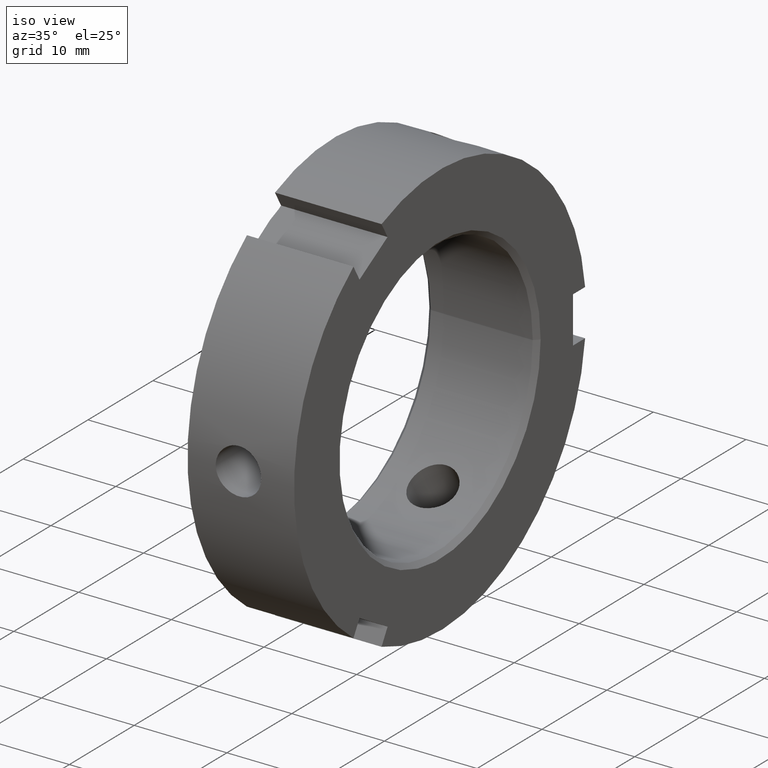
[diagram: clean part render]
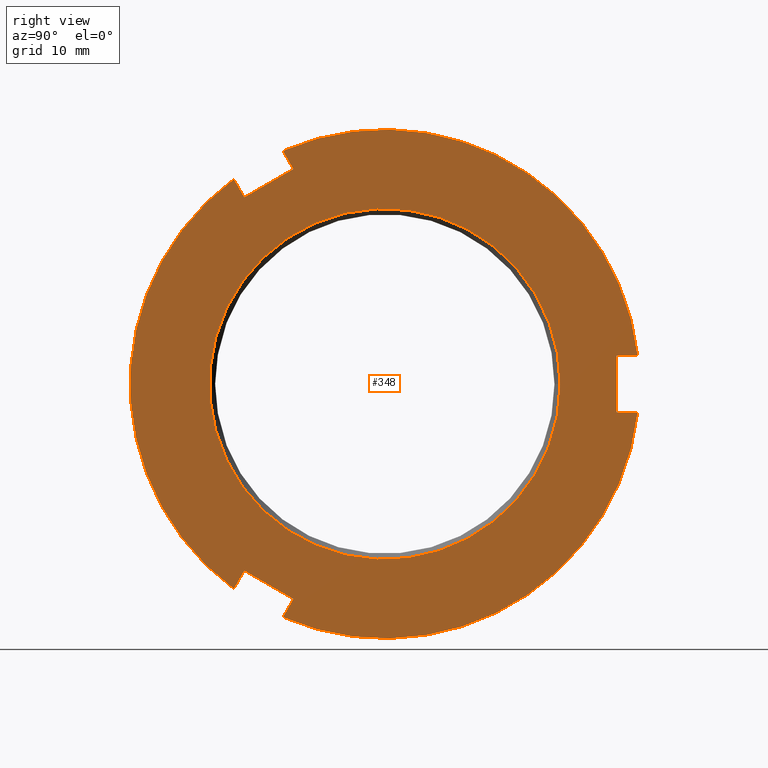
[diagram: tour spotlight — one face highlighted and labeled with its STEP entity id]
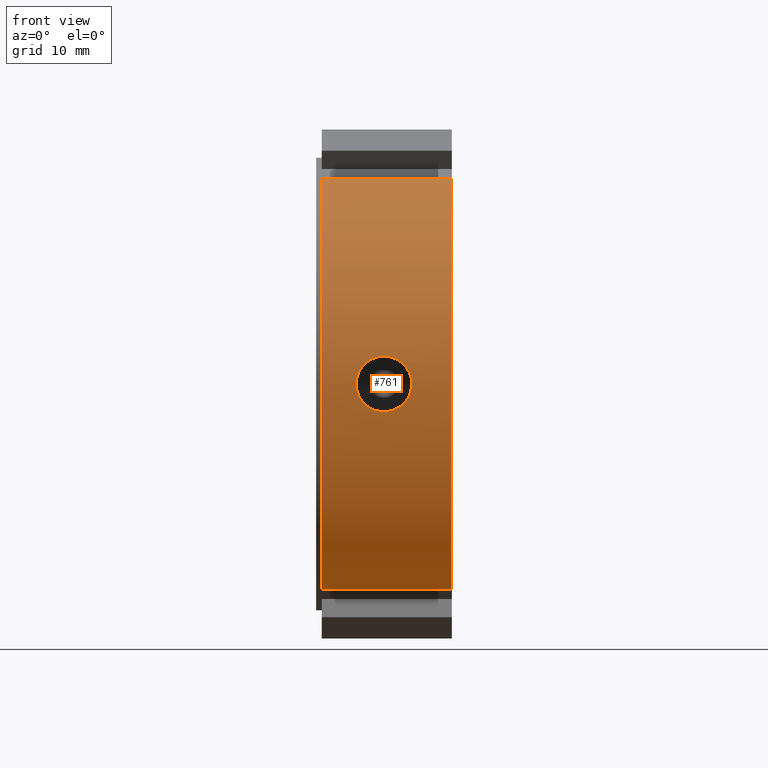
[diagram: tour spotlight — one face highlighted and labeled with its STEP entity id]
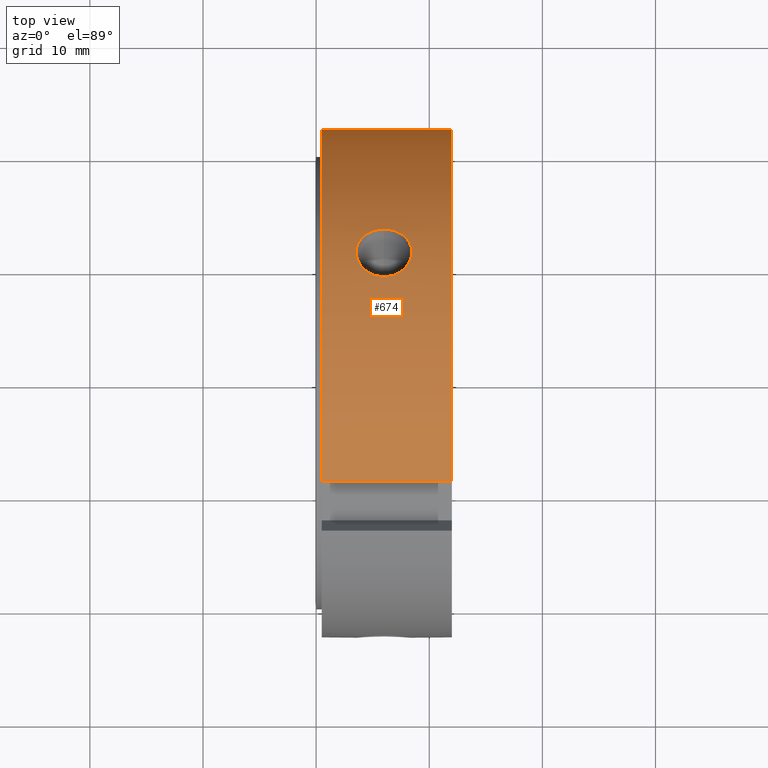
[diagram: tour spotlight — one face highlighted and labeled with its STEP entity id]
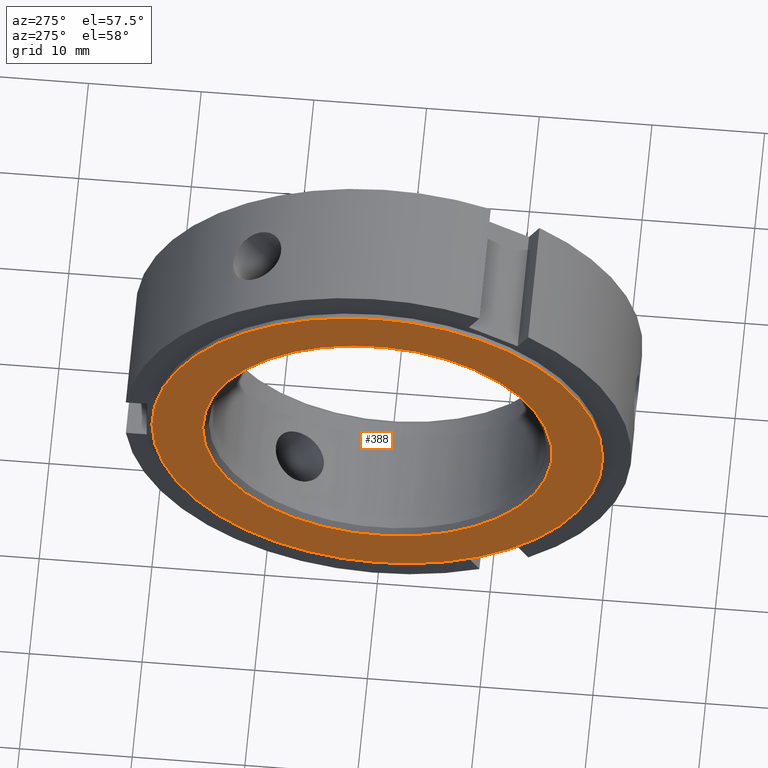
[diagram: tour spotlight — one face highlighted and labeled with its STEP entity id]
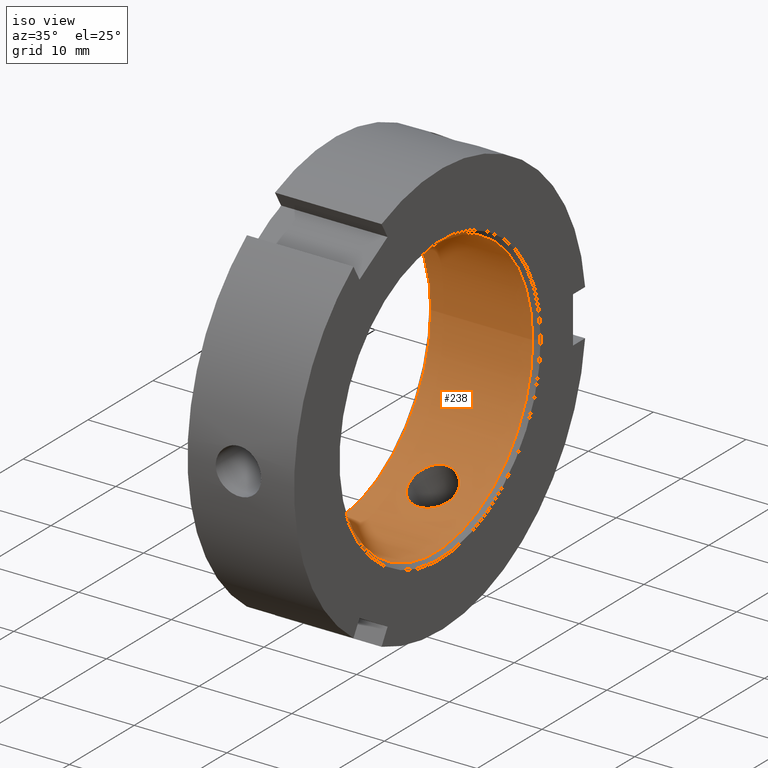
[diagram: tour spotlight — one face highlighted and labeled with its STEP entity id]
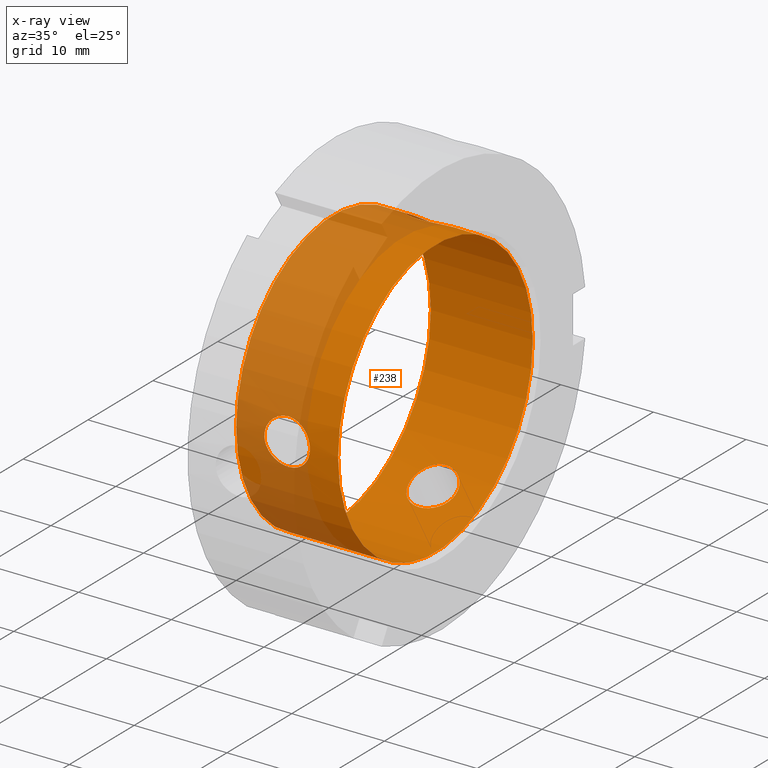
[diagram: x-ray of the same camera — body ghosted, this tour face saturated]
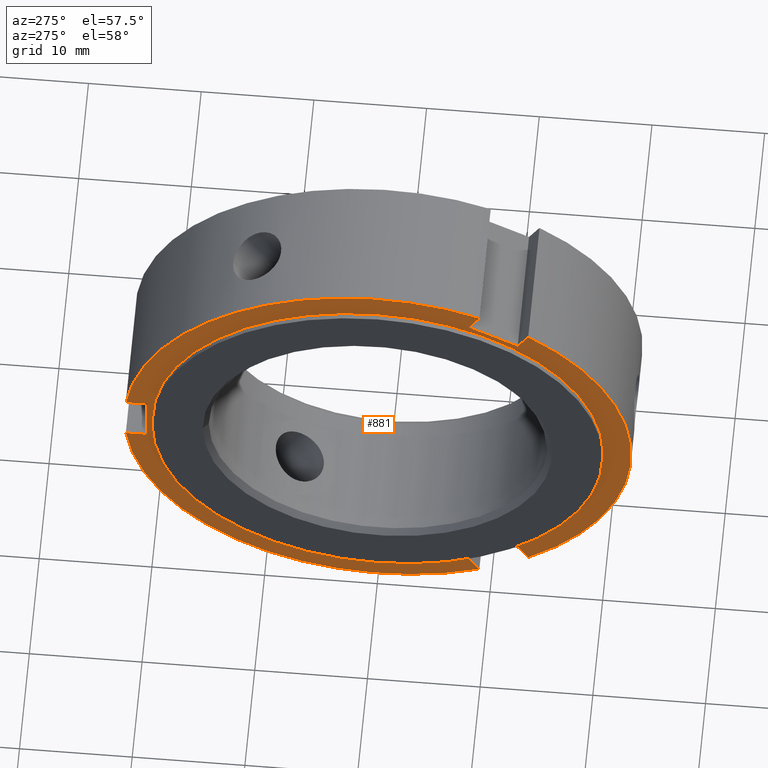
[diagram: tour spotlight — one face highlighted and labeled with its STEP entity id]
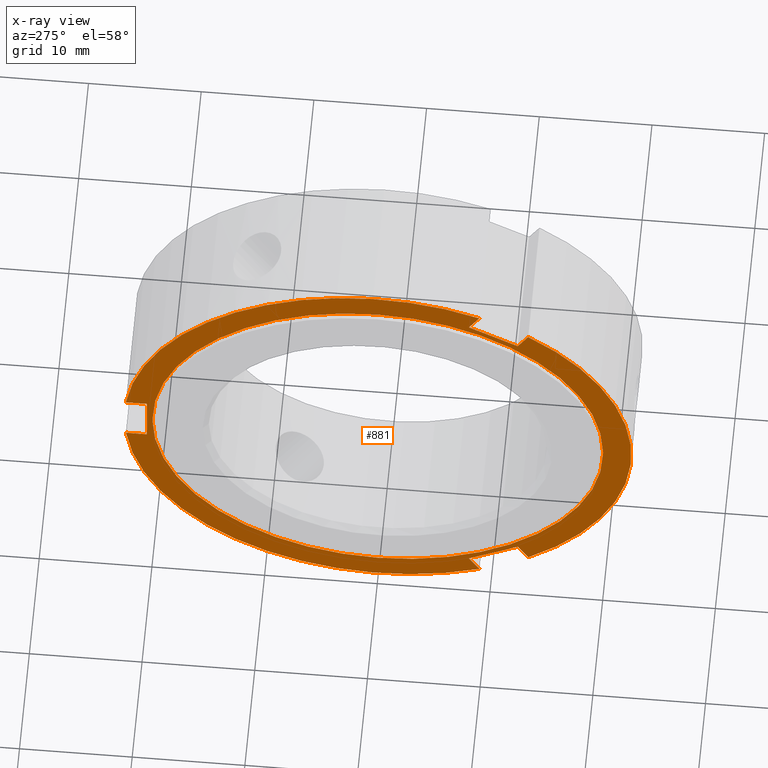
[diagram: x-ray of the same camera — body ghosted, this tour face saturated]
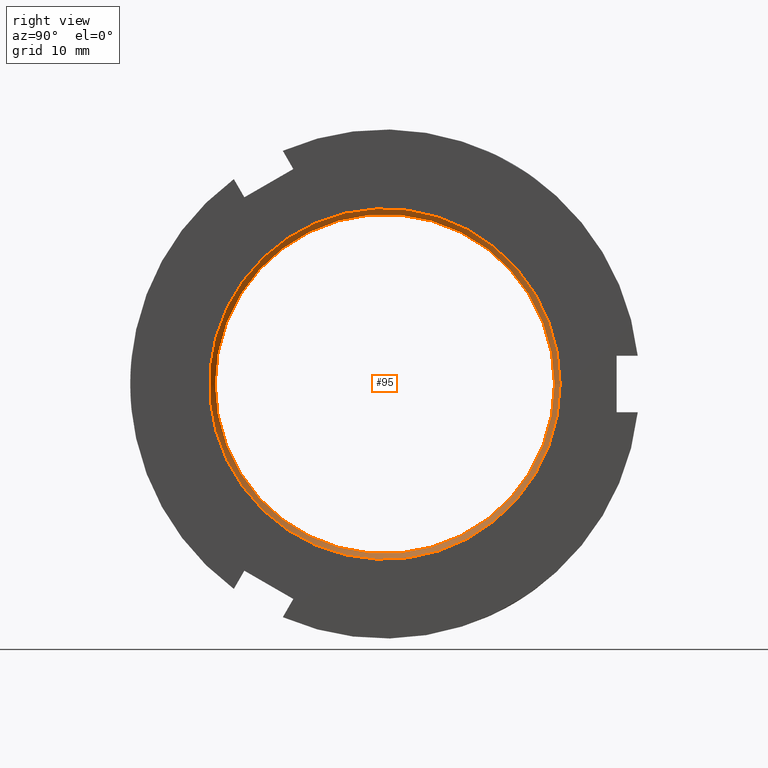
[diagram: tour spotlight — one face highlighted and labeled with its STEP entity id]
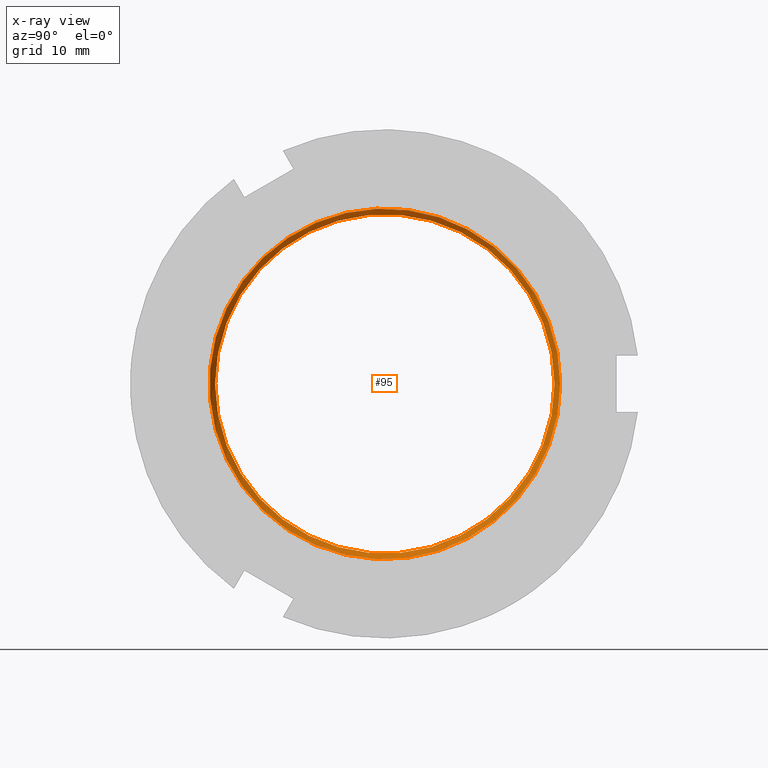
[diagram: x-ray of the same camera — body ghosted, this tour face saturated]
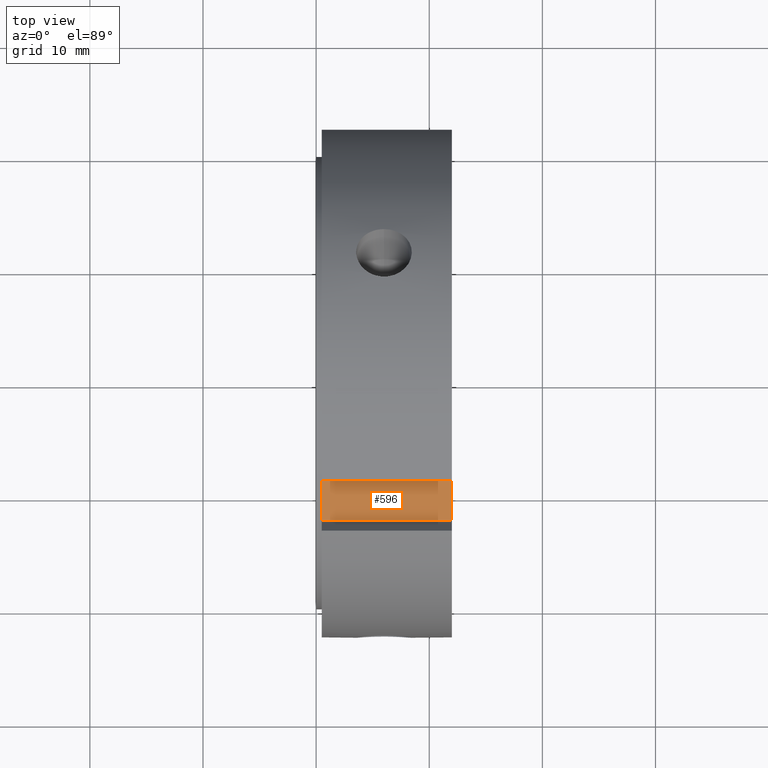
[diagram: tour spotlight — one face highlighted and labeled with its STEP entity id]
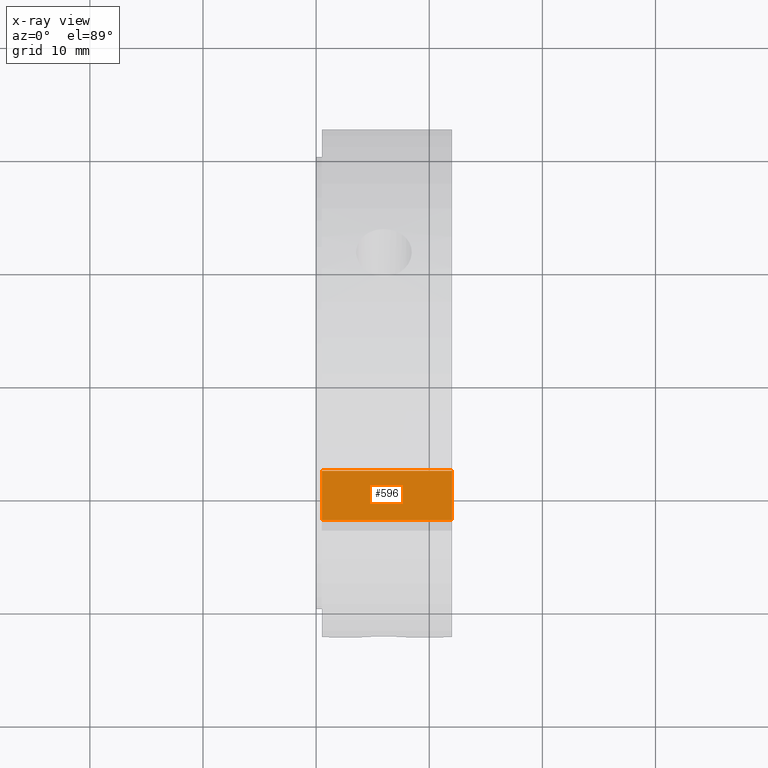
[diagram: x-ray of the same camera — body ghosted, this tour face saturated]
A machine part: a face-by-face anatomy tour. The part has 22 B-rep faces; the first image is the clean iso view, then the 8 largest visible faces are spotlighted one at a time (largest first), each with its STEP entity span.

Face 1 — right view, entity #348. In plain terms, the highlighted planar face has unit normal (1, 0, 0).
Definition (entity closure, byte-faithful):
#73=CARTESIAN_POINT('',(11.999999999999996,15.500000000000000,1.898203E-015));
#74=VERTEX_POINT('',#73);
#75=CARTESIAN_POINT('',(11.999999999999996,0.0,0.0));
#76=DIRECTION('',(1.0,0.0,0.0));
#77=DIRECTION('',(0.0,-1.0,0.0));
#78=AXIS2_PLACEMENT_3D('',#75,#76,#77);
#79=CIRCLE('',#78,15.500000000000000);
#80=EDGE_CURVE('',#74,#74,#79,.T.);
#239=CARTESIAN_POINT('',(11.999999999999996,18.750000000000000,0.0));
#240=DIRECTION('',(1.0,0.0,0.0));
#241=DIRECTION('',(0.0,0.0,-1.0));
#242=AXIS2_PLACEMENT_3D('',#239,#240,#241);
#243=PLANE('',#242);
#244=CARTESIAN_POINT('',(11.999999999999996,-13.345403396960053,-18.114916731037077));
#245=VERTEX_POINT('',#244);
#246=CARTESIAN_POINT('',(11.999999999999996,-12.415063509461104,-16.503520777580988));
#247=VERTEX_POINT('',#246);
#248=CARTESIAN_POINT('',(11.999999999999996,-13.345403396960059,-18.114916731037077));
#249=DIRECTION('',(0.0,0.500000000000001,0.866025403784438));
#250=VECTOR('',#249,1.860679774997895);
#251=LINE('',#248,#250);
#252=EDGE_CURVE('',#245,#247,#251,.T.);
#253=ORIENTED_EDGE('',*,*,#252,.T.);
#254=CARTESIAN_POINT('',(11.999999999999996,-8.084936490538913,-19.003520777580988));
#255=VERTEX_POINT('',#254);
#256=CARTESIAN_POINT('',(11.999999999999996,-12.415063509461110,-16.503520777580988));
#257=DIRECTION('',(0.0,0.866025403784438,-0.500000000000000));
#258=VECTOR('',#257,4.999999999999998);
#259=LINE('',#256,#258);
#260=EDGE_CURVE('',#247,#255,#259,.T.);
#261=ORIENTED_EDGE('',*,*,#260,.T.);
#262=CARTESIAN_POINT('',(11.999999999999996,-9.015276378037862,-20.614916731037077));
#263=VERTEX_POINT('',#262);
#264=CARTESIAN_POINT('',(11.999999999999996,-8.084936490538915,-19.003520777580988));
#265=DIRECTION('',(0.0,-0.500000000000000,-0.866025403784439));
#266=VECTOR('',#265,1.860679774997898);
#267=LINE('',#264,#266);
#268=EDGE_CURVE('',#255,#263,#267,.T.);
#269=ORIENTED_EDGE('',*,*,#268,.T.);
#270=CARTESIAN_POINT('',(11.999999999999996,22.360679774997894,-2.499999999999999));
#271=VERTEX_POINT('',#270);
#272=CARTESIAN_POINT('',(11.999999999999995,0.0,0.0));
#273=DIRECTION('',(1.0,0.0,0.0));
#274=DIRECTION('',(0.0,1.0,0.0));
#275=AXIS2_PLACEMENT_3D('',#272,#273,#274);
#276=CIRCLE('',#275,22.500000000000000);
#277=EDGE_CURVE('',#263,#271,#276,.T.);
#278=ORIENTED_EDGE('',*,*,#277,.T.);
#279=CARTESIAN_POINT('',(11.999999999999996,20.500000000000000,-2.499999999999999));
#280=VERTEX_POINT('',#279);
#281=CARTESIAN_POINT('',(11.999999999999996,22.360679774997894,-2.499999999999999));
#282=DIRECTION('',(0.0,-1.0,0.0));
#283=VECTOR('',#282,1.860679774997895);
#284=LINE('',#281,#283);
#285=EDGE_CURVE('',#271,#280,#284,.T.);
#286=ORIENTED_EDGE('',*,*,#285,.T.);
#287=CARTESIAN_POINT('',(11.999999999999996,20.500000000000000,2.499999999999999));
#288=VERTEX_POINT('',#287);
#289=CARTESIAN_POINT('',(11.999999999999996,20.500000000000000,-2.500000000000000));
#290=DIRECTION('',(0.0,0.0,1.0));
#291=VECTOR('',#290,4.999999999999998);
#292=LINE('',#289,#291);
#293=EDGE_CURVE('',#280,#288,#292,.T.);
#294=ORIENTED_EDGE('',*,*,#293,.T.);
#295=CARTESIAN_POINT('',(11.999999999999996,22.360679774997894,2.499999999999999));
#296=VERTEX_POINT('',#295);
#297=CARTESIAN_POINT('',(11.999999999999996,20.500000000000000,2.499999999999999));
#298=DIRECTION('',(0.0,1.0,0.0));
#299=VECTOR('',#298,1.860679774997895);
#300=LINE('',#297,#299);
#301=EDGE_CURVE('',#288,#296,#300,.T.);
#302=ORIENTED_EDGE('',*,*,#301,.T.);
#303=CARTESIAN_POINT('',(11.999999999999996,-9.015276378037846,20.614916731037084));
#304=VERTEX_POINT('',#303);
#305=CARTESIAN_POINT('',(11.999999999999995,0.0,0.0));
#306=DIRECTION('',(1.0,0.0,0.0));
#307=DIRECTION('',(0.0,1.0,0.0));
#308=AXIS2_PLACEMENT_3D('',#305,#306,#307);
#309=CIRCLE('',#308,22.500000000000000);
#310=EDGE_CURVE('',#296,#304,#309,.T.);
#311=ORIENTED_EDGE('',*,*,#310,.T.);
#312=CARTESIAN_POINT('',(11.999999999999996,-8.084936490538899,19.003520777580995));
#313=VERTEX_POINT('',#312);
#314=CARTESIAN_POINT('',(11.999999999999996,-9.015276378037848,20.614916731037088));
#315=DIRECTION('',(0.0,0.499999999999999,-0.866025403784439));
#316=VECTOR('',#315,1.860679774997897);
#317=LINE('',#314,#316);
#318=EDGE_CURVE('',#304,#313,#317,.T.);
#319=ORIENTED_EDGE('',*,*,#318,.T.);
#320=CARTESIAN_POINT('',(11.999999999999996,-12.415063509461090,16.503520777580995));
#321=VERTEX_POINT('',#320);
#322=CARTESIAN_POINT('',(11.999999999999996,-8.084936490538899,19.003520777580992));
#323=DIRECTION('',(0.0,-0.866025403784439,-0.499999999999999));
#324=VECTOR('',#323,4.999999999999999);
#325=LINE('',#322,#324);
#326=EDGE_CURVE('',#313,#321,#325,.T.);
#327=ORIENTED_EDGE('',*,*,#326,.T.);
#328=CARTESIAN_POINT('',(11.999999999999996,-13.345403396960037,18.114916731037084));
#329=VERTEX_POINT('',#328);
#330=CARTESIAN_POINT('',(11.999999999999996,-12.415063509461094,16.503520777580995));
#331=DIRECTION('',(0.0,-0.499999999999999,0.866025403784439));
#332=VECTOR('',#331,1.860679774997897);
#333=LINE('',#330,#332);
#334=EDGE_CURVE('',#321,#329,#333,.T.);
#335=ORIENTED_EDGE('',*,*,#334,.T.);
#336=CARTESIAN_POINT('',(11.999999999999995,0.0,0.0));
#337=DIRECTION('',(1.0,0.0,0.0));
#338=DIRECTION('',(0.0,1.0,0.0));
#339=AXIS2_PLACEMENT_3D('',#336,#337,#338);
#340=CIRCLE('',#339,22.500000000000000);
#341=EDGE_CURVE('',#329,#245,#340,.T.);
#342=ORIENTED_EDGE('',*,*,#341,.T.);
#343=EDGE_LOOP('',(#253,#261,#269,#278,#286,#294,#302,#311,#319,#327,#335,#342));
#344=FACE_OUTER_BOUND('',#343,.T.);
#345=ORIENTED_EDGE('',*,*,#80,.F.);
#346=EDGE_LOOP('',(#345));
#347=FACE_BOUND('',#346,.T.);
#348=ADVANCED_FACE('',(#344,#347),#243,.T.);

Face 2 — front view, entity #761. In plain terms, the highlighted cylindrical surface (partial cylindrical patch) has radius 22.5 mm, axis along (1, 0, 0).
Definition (entity closure, byte-faithful):
#244=CARTESIAN_POINT('',(11.999999999999996,-13.345403396960053,-18.114916731037077));
#245=VERTEX_POINT('',#244);
#328=CARTESIAN_POINT('',(11.999999999999996,-13.345403396960037,18.114916731037084));
#329=VERTEX_POINT('',#328);
#336=CARTESIAN_POINT('',(11.999999999999995,0.0,0.0));
#337=DIRECTION('',(1.0,0.0,0.0));
#338=DIRECTION('',(0.0,1.0,0.0));
#339=AXIS2_PLACEMENT_3D('',#336,#337,#338);
#340=CIRCLE('',#339,22.500000000000000);
#341=EDGE_CURVE('',#329,#245,#340,.T.);
#396=CARTESIAN_POINT('',(0.499999999999994,-13.345403396960050,-18.114916731037070));
#397=VERTEX_POINT('',#396);
#411=CARTESIAN_POINT('',(0.499999999999994,-13.345403396960053,-18.114916731037077));
#412=DIRECTION('',(1.0,0.0,0.0));
#413=VECTOR('',#412,11.500000000000004);
#414=LINE('',#411,#413);
#415=EDGE_CURVE('',#397,#245,#414,.T.);
#554=CARTESIAN_POINT('',(0.499999999999994,-13.345403396960036,18.114916731037081));
#555=VERTEX_POINT('',#554);
#564=CARTESIAN_POINT('',(11.999999999999996,-13.345403396960037,18.114916731037084));
#565=DIRECTION('',(-1.0,0.0,0.0));
#566=VECTOR('',#565,11.500000000000004);
#567=LINE('',#564,#566);
#568=EDGE_CURVE('',#329,#555,#567,.T.);
#703=CARTESIAN_POINT('',(6.249999999999995,0.0,0.0));
#704=DIRECTION('',(1.0,0.0,0.0));
#705=DIRECTION('',(0.0,1.0,0.0));
#706=AXIS2_PLACEMENT_3D('',#703,#704,#705);
#707=CYLINDRICAL_SURFACE('',#706,22.499999999999996);
#708=ORIENTED_EDGE('',*,*,#415,.T.);
#709=ORIENTED_EDGE('',*,*,#341,.F.);
#710=ORIENTED_EDGE('',*,*,#568,.T.);
#711=CARTESIAN_POINT('',(0.499999999999994,0.0,0.0));
#712=DIRECTION('',(1.0,0.0,0.0));
#713=DIRECTION('',(0.0,1.0,0.0));
#714=AXIS2_PLACEMENT_3D('',#711,#712,#713);
#715=CIRCLE('',#714,22.499999999999993);
#716=EDGE_CURVE('',#555,#397,#715,.T.);
#717=ORIENTED_EDGE('',*,*,#716,.T.);
#718=EDGE_LOOP('',(#708,#709,#710,#717));
#719=FACE_OUTER_BOUND('',#718,.T.);
#720=CARTESIAN_POINT('',(5.999999999999995,-22.365280632042150,2.458500000000000));
#721=VERTEX_POINT('',#720);
#722=CARTESIAN_POINT('',(5.999999999999995,-22.365280632042150,2.458500000000000));
#723=CARTESIAN_POINT('',(6.308960393679368,-22.365280632042150,2.458500000000000));
#724=CARTESIAN_POINT('',(6.638344698398968,-22.372342768713821,2.396703641114719));
#725=CARTESIAN_POINT('',(7.243994563331624,-22.397807019914900,2.145728296047083));
#726=CARTESIAN_POINT('',(7.520281295008822,-22.415836664311506,1.956562748085426));
#727=CARTESIAN_POINT('',(7.956561687762608,-22.449646149616228,1.520282355331640));
#728=CARTESIAN_POINT('',(8.145728064719984,-22.467628717583782,1.243995160332736));
#729=CARTESIAN_POINT('',(8.396704023595195,-22.492985160308891,0.638343736636801));
#730=CARTESIAN_POINT('',(8.458499999999994,-22.499999999999996,0.308958891906832));
#731=CARTESIAN_POINT('',(8.458499999999994,-22.499999999999996,-0.308958891906831));
#732=CARTESIAN_POINT('',(8.396704023595195,-22.492985160308891,-0.638343736636802));
#733=CARTESIAN_POINT('',(8.145728064719984,-22.467628717583782,-1.243995160332736));
#734=CARTESIAN_POINT('',(7.956561687762608,-22.449646149616228,-1.520282355331640));
#735=CARTESIAN_POINT('',(7.520281295008823,-22.415836664311506,-1.956562748085426));
#736=CARTESIAN_POINT('',(7.243994563331622,-22.397807019914900,-2.145728296047083));
#737=CARTESIAN_POINT('',(6.638344698398965,-22.372342768713821,-2.396703641114719));
#738=CARTESIAN_POINT('',(6.308960393679368,-22.365280632042150,-2.458500000000000));
#739=CARTESIAN_POINT('',(5.691039606320620,-22.365280632042154,-2.458500000000000));
#740=CARTESIAN_POINT('',(5.361655301601020,-22.372342768713821,-2.396703641114719));
#741=CARTESIAN_POINT('',(4.756005436668366,-22.397807019914900,-2.145728296047083));
#742=CARTESIAN_POINT('',(4.479718704991166,-22.415836664311506,-1.956562748085426));
#743=CARTESIAN_POINT('',(4.043438312237380,-22.449646149616228,-1.520282355331641));
#744=CARTESIAN_POINT('',(3.854271935280005,-22.467628717583782,-1.243995160332737));
#745=CARTESIAN_POINT('',(3.603295976404794,-22.492985160308891,-0.638343736636803));
#746=CARTESIAN_POINT('',(3.541499999999994,-22.499999999999996,-0.308958891906832));
#747=CARTESIAN_POINT('',(3.541499999999994,-22.500000000000000,0.308958891906830));
#748=CARTESIAN_POINT('',(3.603295976404794,-22.492985160308887,0.638343736636801));
#749=CARTESIAN_POINT('',(3.854271935280003,-22.467628717583779,1.243995160332735));
#750=CARTESIAN_POINT('',(4.043438312237379,-22.449646149616235,1.520282355331639));
#751=CARTESIAN_POINT('',(4.479718704991166,-22.415836664311506,1.956562748085426));
#752=CARTESIAN_POINT('',(4.756005436668367,-22.397807019914900,2.145728296047083));
#753=CARTESIAN_POINT('',(5.361655301601022,-22.372342768713821,2.396703641114719));
#754=CARTESIAN_POINT('',(5.691039606320620,-22.365280632042150,2.458500000000000));
#755=CARTESIAN_POINT('',(5.999999999999995,-22.365280632042150,2.458500000000000));
#756=B_SPLINE_CURVE_WITH_KNOTS('',3,(#722,#723,#724,#725,#726,#727,#728,#729,#730,#731,#732,#733,#734,#735,#736,#737,#738,#739,#740,#741,#742,#743,#744,#745,#746,#747,#748,#749,#750,#751,#752,#753,#754,#755),.UNSPECIFIED.,.T.,.U.,(4,2,2,2,2,2,2,2,2,2,2,2,2,2,2,2,4),(0.0,0.092688118103812,0.185376236207624,0.278063903779673,0.370751571351723,0.463439238923772,0.556126906495822,0.648815024599634,0.741503142703446,0.834191260807258,0.926879378911070,1.019567046483120,1.112254714055169,1.204942381627218,1.297630049199268,1.390318167303080,1.483006285406892),.UNSPECIFIED.);
#757=EDGE_CURVE('',#721,#721,#756,.T.);
#758=ORIENTED_EDGE('',*,*,#757,.T.);
#759=EDGE_LOOP('',(#758));
#760=FACE_BOUND('',#759,.T.);
#761=ADVANCED_FACE('',(#719,#760),#707,.T.);

Face 3 — top view, entity #674. In plain terms, the highlighted cylindrical surface (partial cylindrical patch) has radius 22.5 mm, axis along (1, 0, 0).
Definition (entity closure, byte-faithful):
#295=CARTESIAN_POINT('',(11.999999999999996,22.360679774997894,2.499999999999999));
#296=VERTEX_POINT('',#295);
#303=CARTESIAN_POINT('',(11.999999999999996,-9.015276378037846,20.614916731037084));
#304=VERTEX_POINT('',#303);
#305=CARTESIAN_POINT('',(11.999999999999995,0.0,0.0));
#306=DIRECTION('',(1.0,0.0,0.0));
#307=DIRECTION('',(0.0,1.0,0.0));
#308=AXIS2_PLACEMENT_3D('',#305,#306,#307);
#309=CIRCLE('',#308,22.500000000000000);
#310=EDGE_CURVE('',#296,#304,#309,.T.);
#473=CARTESIAN_POINT('',(5.999999999999995,13.311763771225127,18.139651190116584));
#474=VERTEX_POINT('',#473);
#475=CARTESIAN_POINT('',(5.999999999999993,13.311763771225124,18.139651190116584));
#476=CARTESIAN_POINT('',(6.308960393679367,13.311763771225124,18.139651190116584));
#477=CARTESIAN_POINT('',(6.638344698398967,13.261777622904923,18.176665359321884));
#478=CARTESIAN_POINT('',(7.243994563331620,13.057158723953323,18.324205720284187));
#479=CARTESIAN_POINT('',(7.520281295008822,12.902351376096028,18.434402624333678));
#480=CARTESIAN_POINT('',(7.956561687762608,12.541426215450556,18.681822693873336));
#481=CARTESIAN_POINT('',(8.145728064719988,12.311145769824938,18.835539652057967));
#482=CARTESIAN_POINT('',(8.396704023595197,11.799314472428604,19.160324687455489));
#483=CARTESIAN_POINT('',(8.458499999999996,11.517566249116406,19.331092139196443));
#484=CARTESIAN_POINT('',(8.458499999999994,10.982433750883594,19.640051031103276));
#485=CARTESIAN_POINT('',(8.396704023595195,10.693670687880294,19.798668424092291));
#486=CARTESIAN_POINT('',(8.145728064719984,10.156482947758850,20.079534812390705));
#487=CARTESIAN_POINT('',(7.956561687762608,9.908219934165679,20.202105049204981));
#488=CARTESIAN_POINT('',(7.520281295008823,9.513485288215488,20.390965372419107));
#489=CARTESIAN_POINT('',(7.243994563331622,9.340648295961584,20.469934016331273));
#490=CARTESIAN_POINT('',(6.638344698398967,9.110565145808906,20.573369000436603));
#491=CARTESIAN_POINT('',(6.308960393679368,9.053516860817039,20.598151190116589));
#492=CARTESIAN_POINT('',(5.691039606320620,9.053516860817039,20.598151190116589));
#493=CARTESIAN_POINT('',(5.361655301601022,9.110565145808906,20.573369000436603));
#494=CARTESIAN_POINT('',(4.756005436668368,9.340648295961584,20.469934016331273));
#495=CARTESIAN_POINT('',(4.479718704991168,9.513485288215488,20.390965372419103));
#496=CARTESIAN_POINT('',(4.043438312237381,9.908219934165679,20.202105049204981));
#497=CARTESIAN_POINT('',(3.854271935280007,10.156482947758846,20.079534812390705));
#498=CARTESIAN_POINT('',(3.603295976404796,10.693670687880292,19.798668424092291));
#499=CARTESIAN_POINT('',(3.541499999999994,10.982433750883590,19.640051031103273));
#500=CARTESIAN_POINT('',(3.541499999999993,11.517566249116410,19.331092139196443));
#501=CARTESIAN_POINT('',(3.603295976404792,11.799314472428604,19.160324687455489));
#502=CARTESIAN_POINT('',(3.854271935280002,12.311145769824938,18.835539652057967));
#503=CARTESIAN_POINT('',(4.043438312237379,12.541426215450556,18.681822693873336));
#504=CARTESIAN_POINT('',(4.479718704991166,12.902351376096028,18.434402624333678));
#505=CARTESIAN_POINT('',(4.756005436668367,13.057158723953323,18.324205720284187));
#506=CARTESIAN_POINT('',(5.361655301601022,13.261777622904923,18.176665359321884));
#507=CARTESIAN_POINT('',(5.691039606320620,13.311763771225124,18.139651190116584));
#508=CARTESIAN_POINT('',(5.999999999999995,13.311763771225124,18.139651190116584));
#509=B_SPLINE_CURVE_WITH_KNOTS('',3,(#475,#476,#477,#478,#479,#480,#481,#482,#483,#484,#485,#486,#487,#488,#489,#490,#491,#492,#493,#494,#495,#496,#497,#498,#499,#500,#501,#502,#503,#504,#505,#506,#507,#508),.UNSPECIFIED.,.T.,.U.,(4,2,2,2,2,2,2,2,2,2,2,2,2,2,2,2,4),(0.0,0.092688118103812,0.185376236207624,0.278063903779674,0.370751571351723,0.463439238923773,0.556126906495822,0.648815024599634,0.741503142703446,0.834191260807258,0.926879378911070,1.019567046483120,1.112254714055169,1.204942381627218,1.297630049199268,1.390318167303080,1.483006285406892),.UNSPECIFIED.);
#510=EDGE_CURVE('',#474,#474,#509,.T.);
#525=CARTESIAN_POINT('',(0.499999999999994,-9.015276378037845,20.614916731037081));
#526=VERTEX_POINT('',#525);
#540=CARTESIAN_POINT('',(0.499999999999994,-9.015276378037845,20.614916731037081));
#541=DIRECTION('',(1.0,0.0,0.0));
#542=VECTOR('',#541,11.500000000000004);
#543=LINE('',#540,#542);
#544=EDGE_CURVE('',#526,#304,#543,.T.);
#647=CARTESIAN_POINT('',(6.249999999999995,0.0,0.0));
#648=DIRECTION('',(1.0,0.0,0.0));
#649=DIRECTION('',(0.0,1.0,0.0));
#650=AXIS2_PLACEMENT_3D('',#647,#648,#649);
#651=CYLINDRICAL_SURFACE('',#650,22.499999999999996);
#652=ORIENTED_EDGE('',*,*,#544,.T.);
#653=ORIENTED_EDGE('',*,*,#310,.F.);
#654=CARTESIAN_POINT('',(0.499999999999994,22.360679774997891,2.499999999999999));
#655=VERTEX_POINT('',#654);
#656=CARTESIAN_POINT('',(11.999999999999996,22.360679774997894,2.499999999999999));
#657=DIRECTION('',(-1.0,0.0,0.0));
#658=VECTOR('',#657,11.500000000000004);
#659=LINE('',#656,#658);
#660=EDGE_CURVE('',#296,#655,#659,.T.);
#661=ORIENTED_EDGE('',*,*,#660,.T.);
#662=CARTESIAN_POINT('',(0.499999999999994,0.0,0.0));
#663=DIRECTION('',(1.0,0.0,0.0));
#664=DIRECTION('',(0.0,1.0,0.0));
#665=AXIS2_PLACEMENT_3D('',#662,#663,#664);
#666=CIRCLE('',#665,22.499999999999993);
#667=EDGE_CURVE('',#655,#526,#666,.T.);
#668=ORIENTED_EDGE('',*,*,#667,.T.);
#669=EDGE_LOOP('',(#652,#653,#661,#668));
#670=FACE_OUTER_BOUND('',#669,.T.);
#671=ORIENTED_EDGE('',*,*,#510,.T.);
#672=EDGE_LOOP('',(#671));
#673=FACE_BOUND('',#672,.T.);
#674=ADVANCED_FACE('',(#670,#673),#651,.T.);

Face 4 — auxiliary view, entity #388. In plain terms, the highlighted planar face has unit normal (-1, 0, 0).
Definition (entity closure, byte-faithful):
#357=CARTESIAN_POINT('',(-4.093947E-015,15.500000000000000,-1.898203E-015));
#358=VERTEX_POINT('',#357);
#359=CARTESIAN_POINT('',(-4.093947E-015,0.0,0.0));
#360=DIRECTION('',(-1.0,0.0,0.0));
#361=DIRECTION('',(0.0,-1.0,0.0));
#362=AXIS2_PLACEMENT_3D('',#359,#360,#361);
#363=CIRCLE('',#362,15.500000000000000);
#364=EDGE_CURVE('',#358,#358,#363,.T.);
#369=CARTESIAN_POINT('',(-4.069772E-015,17.500000000000000,0.0));
#370=DIRECTION('',(-1.0,0.0,0.0));
#371=DIRECTION('',(0.0,0.0,1.0));
#372=AXIS2_PLACEMENT_3D('',#369,#370,#371);
#373=PLANE('',#372);
#374=CARTESIAN_POINT('',(-4.440892E-015,19.999999999999996,0.0));
#375=VERTEX_POINT('',#374);
#376=CARTESIAN_POINT('',(-4.440892E-015,0.0,0.0));
#377=DIRECTION('',(1.0,0.0,0.0));
#378=DIRECTION('',(0.0,1.0,0.0));
#379=AXIS2_PLACEMENT_3D('',#376,#377,#378);
#380=CIRCLE('',#379,19.999999999999996);
#381=EDGE_CURVE('',#375,#375,#380,.T.);
#382=ORIENTED_EDGE('',*,*,#381,.F.);
#383=EDGE_LOOP('',(#382));
#384=FACE_OUTER_BOUND('',#383,.T.);
#385=ORIENTED_EDGE('',*,*,#364,.F.);
#386=EDGE_LOOP('',(#385));
#387=FACE_BOUND('',#386,.T.);
#388=ADVANCED_FACE('',(#384,#387),#373,.T.);

Face 5 — iso view, entity #238. An x-ray twin of the same camera follows (body ghosted, this face saturated) — the face is partly hidden behind the body. In plain terms, the highlighted cylindrical surface (bore or boss wall) has radius 15 mm, axis along (1, 0, 0).
Definition (entity closure, byte-faithful):
#84=CARTESIAN_POINT('',(11.499999999999996,15.0,-1.836970E-015));
#85=VERTEX_POINT('',#84);
#86=CARTESIAN_POINT('',(11.499999999999996,0.0,0.0));
#87=DIRECTION('',(-1.0,0.0,0.0));
#88=DIRECTION('',(0.0,-1.0,0.0));
#89=AXIS2_PLACEMENT_3D('',#86,#87,#88);
#90=CIRCLE('',#89,15.0);
#91=EDGE_CURVE('',#85,#85,#90,.T.);
#96=CARTESIAN_POINT('',(5.999999999999996,0.0,0.0));
#97=DIRECTION('',(1.0,0.0,0.0));
#98=DIRECTION('',(0.0,1.0,0.0));
#99=AXIS2_PLACEMENT_3D('',#96,#97,#98);
#100=CYLINDRICAL_SURFACE('',#99,15.0);
#101=CARTESIAN_POINT('',(0.499999999999996,15.0,1.836970E-015));
#102=VERTEX_POINT('',#101);
#103=CARTESIAN_POINT('',(0.499999999999996,0.0,0.0));
#104=DIRECTION('',(1.0,0.0,0.0));
#105=DIRECTION('',(0.0,-1.0,0.0));
#106=AXIS2_PLACEMENT_3D('',#103,#104,#105);
#107=CIRCLE('',#106,15.0);
#108=EDGE_CURVE('',#102,#102,#107,.T.);
#109=ORIENTED_EDGE('',*,*,#108,.F.);
#110=EDGE_LOOP('',(#109));
#111=FACE_OUTER_BOUND('',#110,.T.);
#112=CARTESIAN_POINT('',(5.999999999999995,9.527700645279179,11.585461596930299));
#113=VERTEX_POINT('',#112);
#114=CARTESIAN_POINT('',(5.999999999999995,9.527700645279175,11.585461596930299));
#115=CARTESIAN_POINT('',(5.690701021672715,9.527700645279175,11.585461596930299));
#116=CARTESIAN_POINT('',(5.361174964781096,9.479419812042275,11.625692621913288));
#117=CARTESIAN_POINT('',(4.755621264227968,9.281214361478437,11.784531755638657));
#118=CARTESIAN_POINT('',(4.479544766165401,9.131027314108236,11.902625614815321));
#119=CARTESIAN_POINT('',(4.043616630616774,8.778934752417003,12.164639680096281));
#120=CARTESIAN_POINT('',(3.854499635617677,8.553352753598116,12.326077867837174));
#121=CARTESIAN_POINT('',(3.603426014287461,8.047965060427615,12.661844151364663));
#122=CARTESIAN_POINT('',(3.541499999999993,7.767854087497213,12.835735427246515));
#123=CARTESIAN_POINT('',(3.541499999999995,7.232145912502784,13.145026686286634));
#124=CARTESIAN_POINT('',(3.603426014287466,6.941496163627408,13.300664266782212));
#125=CARTESIAN_POINT('',(3.854499635617683,6.398020185773064,13.570459706064138));
#126=CARTESIAN_POINT('',(4.043616630616775,6.145419614639087,13.685100353807318));
#127=CARTESIAN_POINT('',(4.479544766165402,5.742462497111326,13.859014424074982));
#128=CARTESIAN_POINT('',(4.755621264227972,5.565096691348296,13.930033292828623));
#129=CARTESIAN_POINT('',(5.361174964781100,5.328435241145096,14.022264681322763));
#130=CARTESIAN_POINT('',(5.690701021672715,5.269453734871088,14.043961596930304));
#131=CARTESIAN_POINT('',(6.309298978327273,5.269453734871088,14.043961596930304));
#132=CARTESIAN_POINT('',(6.638825035218885,5.328435241145096,14.022264681322763));
#133=CARTESIAN_POINT('',(7.244378735772017,5.565096691348296,13.930033292828622));
#134=CARTESIAN_POINT('',(7.520455233834587,5.742462497111327,13.859014424074982));
#135=CARTESIAN_POINT('',(7.956383369383212,6.145419614639087,13.685100353807318));
#136=CARTESIAN_POINT('',(8.145500364382306,6.398020185773064,13.570459706064138));
#137=CARTESIAN_POINT('',(8.396573985712523,6.941496163627408,13.300664266782212));
#138=CARTESIAN_POINT('',(8.458499999999994,7.232145912502784,13.145026686286634));
#139=CARTESIAN_POINT('',(8.458499999999996,7.767854087497214,12.835735427246515));
#140=CARTESIAN_POINT('',(8.396573985712529,8.047965060427615,12.661844151364663));
#141=CARTESIAN_POINT('',(8.145500364382311,8.553352753598116,12.326077867837173));
#142=CARTESIAN_POINT('',(7.956383369383215,8.778934752417003,12.164639680096281));
#143=CARTESIAN_POINT('',(7.520455233834589,9.131027314108236,11.902625614815319));
#144=CARTESIAN_POINT('',(7.244378735772021,9.281214361478437,11.784531755638657));
#145=CARTESIAN_POINT('',(6.638825035218892,9.479419812042274,11.625692621913288));
#146=CARTESIAN_POINT('',(6.309298978327273,9.527700645279175,11.585461596930299));
#147=CARTESIAN_POINT('',(5.999999999999995,9.527700645279175,11.585461596930299));
#148=B_SPLINE_CURVE_WITH_KNOTS('',3,(#114,#115,#116,#117,#118,#119,#120,#121,#122,#123,#124,#125,#126,#127,#128,#129,#130,#131,#132,#133,#134,#135,#136,#137,#138,#139,#140,#141,#142,#143,#144,#145,#146,#147),.UNSPECIFIED.,.T.,.U.,(4,2,2,2,2,2,2,2,2,2,2,2,2,2,2,2,4),(0.0,0.092789693498184,0.185579386996367,0.278366764708402,0.371154142420438,0.463941520132473,0.556728897844508,0.649518591342692,0.742308284840875,0.835097978339059,0.927887671837242,1.020675049549278,1.113462427261313,1.206249804973348,1.299037182685383,1.391826876183567,1.484616569681751),.UNSPECIFIED.);
#149=EDGE_CURVE('',#113,#113,#148,.T.);
#150=ORIENTED_EDGE('',*,*,#149,.T.);
#151=EDGE_LOOP('',(#150));
#152=FACE_BOUND('',#151,.T.);
#153=CARTESIAN_POINT('',(5.999999999999995,5.269453734871084,-14.043961596930306));
#154=VERTEX_POINT('',#153);
#155=CARTESIAN_POINT('',(5.999999999999995,5.269453734871085,-14.043961596930304));
#156=CARTESIAN_POINT('',(5.690701021672715,5.269453734871085,-14.043961596930304));
#157=CARTESIAN_POINT('',(5.361174964781102,5.328435241145092,-14.022264681322763));
#158=CARTESIAN_POINT('',(4.755621264227973,5.565096691348294,-13.930033292828625));
#159=CARTESIAN_POINT('',(4.479544766165403,5.742462497111327,-13.859014424074987));
#160=CARTESIAN_POINT('',(4.043616630616777,6.145419614639089,-13.685100353807321));
#161=CARTESIAN_POINT('',(3.854499635617676,6.398020185773067,-13.570459706064135));
#162=CARTESIAN_POINT('',(3.603426014287461,6.941496163627411,-13.300664266782210));
#163=CARTESIAN_POINT('',(3.541499999999994,7.232145912502784,-13.145026686286636));
#164=CARTESIAN_POINT('',(3.541499999999994,7.767854087497215,-12.835735427246519));
#165=CARTESIAN_POINT('',(3.603426014287464,8.047965060427613,-12.661844151364665));
#166=CARTESIAN_POINT('',(3.854499635617681,8.553352753598116,-12.326077867837174));
#167=CARTESIAN_POINT('',(4.043616630616774,8.778934752417008,-12.164639680096286));
#168=CARTESIAN_POINT('',(4.479544766165402,9.131027314108239,-11.902625614815323));
#169=CARTESIAN_POINT('',(4.755621264227973,9.281214361478437,-11.784531755638664));
#170=CARTESIAN_POINT('',(5.361174964781101,9.479419812042272,-11.625692621913295));
#171=CARTESIAN_POINT('',(5.690701021672715,9.527700645279172,-11.585461596930298));
#172=CARTESIAN_POINT('',(6.309298978327273,9.527700645279172,-11.585461596930298));
#173=CARTESIAN_POINT('',(6.638825035218885,9.479419812042272,-11.625692621913293));
#174=CARTESIAN_POINT('',(7.244378735772017,9.281214361478435,-11.784531755638660));
#175=CARTESIAN_POINT('',(7.520455233834587,9.131027314108239,-11.902625614815324));
#176=CARTESIAN_POINT('',(7.956383369383214,8.778934752417008,-12.164639680096286));
#177=CARTESIAN_POINT('',(8.145500364382308,8.553352753598118,-12.326077867837174));
#178=CARTESIAN_POINT('',(8.396573985712525,8.047965060427615,-12.661844151364665));
#179=CARTESIAN_POINT('',(8.458499999999994,7.767854087497215,-12.835735427246519));
#180=CARTESIAN_POINT('',(8.458499999999994,7.232145912502784,-13.145026686286638));
#181=CARTESIAN_POINT('',(8.396573985712525,6.941496163627407,-13.300664266782212));
#182=CARTESIAN_POINT('',(8.145500364382309,6.398020185773063,-13.570459706064138));
#183=CARTESIAN_POINT('',(7.956383369383212,6.145419614639089,-13.685100353807321));
#184=CARTESIAN_POINT('',(7.520455233834584,5.742462497111327,-13.859014424074987));
#185=CARTESIAN_POINT('',(7.244378735772016,5.565096691348294,-13.930033292828625));
#186=CARTESIAN_POINT('',(6.638825035218886,5.328435241145092,-14.022264681322763));
#187=CARTESIAN_POINT('',(6.309298978327272,5.269453734871085,-14.043961596930304));
#188=CARTESIAN_POINT('',(5.999999999999993,5.269453734871085,-14.043961596930304));
#189=B_SPLINE_CURVE_WITH_KNOTS('',3,(#155,#156,#157,#158,#159,#160,#161,#162,#163,#164,#165,#166,#167,#168,#169,#170,#171,#172,#173,#174,#175,#176,#177,#178,#179,#180,#181,#182,#183,#184,#185,#186,#187,#188),.UNSPECIFIED.,.T.,.U.,(4,2,2,2,2,2,2,2,2,2,2,2,2,2,2,2,4),(0.0,0.092789693498184,0.185579386996367,0.278366764708403,0.371154142420438,0.463941520132473,0.556728897844509,0.649518591342692,0.742308284840876,0.835097978339059,0.927887671837243,1.020675049549278,1.113462427261314,1.206249804973349,1.299037182685384,1.391826876183568,1.484616569681752),.UNSPECIFIED.);
#190=EDGE_CURVE('',#154,#154,#189,.T.);
#191=ORIENTED_EDGE('',*,*,#190,.T.);
#192=EDGE_LOOP('',(#191));
#193=FACE_BOUND('',#192,.T.);
#194=CARTESIAN_POINT('',(5.999999999999995,-14.797154380150259,2.458500000000000));
#195=VERTEX_POINT('',#194);
#196=CARTESIAN_POINT('',(5.999999999999995,-14.797154380150259,2.458500000000000));
#197=CARTESIAN_POINT('',(5.690701021672715,-14.797154380150259,2.458500000000000));
#198=CARTESIAN_POINT('',(5.361174964781097,-14.807855053187362,2.396572059409469));
#199=CARTESIAN_POINT('',(4.755621264227968,-14.846311052826726,2.145501537189962));
#200=CARTESIAN_POINT('',(4.479544766165402,-14.873489811219564,1.956388809259662));
#201=CARTESIAN_POINT('',(4.043616630616775,-14.924354367056093,1.520460673711035));
#202=CARTESIAN_POINT('',(3.854499635617680,-14.951372939371181,1.244381838226960));
#203=CARTESIAN_POINT('',(3.603426014287464,-14.989461224055026,0.638820115417546));
#204=CARTESIAN_POINT('',(3.541499999999994,-15.0,0.309291259040118));
#205=CARTESIAN_POINT('',(3.541499999999994,-15.0,-0.309291259040118));
#206=CARTESIAN_POINT('',(3.603426014287463,-14.989461224055026,-0.638820115417547));
#207=CARTESIAN_POINT('',(3.854499635617680,-14.951372939371181,-1.244381838226960));
#208=CARTESIAN_POINT('',(4.043616630616775,-14.924354367056093,-1.520460673711035));
#209=CARTESIAN_POINT('',(4.479544766165402,-14.873489811219564,-1.956388809259662));
#210=CARTESIAN_POINT('',(4.755621264227968,-14.846311052826726,-2.145501537189962));
#211=CARTESIAN_POINT('',(5.361174964781097,-14.807855053187362,-2.396572059409469));
#212=CARTESIAN_POINT('',(5.690701021672715,-14.797154380150259,-2.458500000000000));
#213=CARTESIAN_POINT('',(6.309298978327274,-14.797154380150259,-2.458500000000000));
#214=CARTESIAN_POINT('',(6.638825035218892,-14.807855053187362,-2.396572059409469));
#215=CARTESIAN_POINT('',(7.244378735772021,-14.846311052826726,-2.145501537189961));
#216=CARTESIAN_POINT('',(7.520455233834587,-14.873489811219564,-1.956388809259662));
#217=CARTESIAN_POINT('',(7.956383369383213,-14.924354367056093,-1.520460673711035));
#218=CARTESIAN_POINT('',(8.145500364382309,-14.951372939371181,-1.244381838226960));
#219=CARTESIAN_POINT('',(8.396573985712525,-14.989461224055026,-0.638820115417545));
#220=CARTESIAN_POINT('',(8.458499999999994,-15.0,-0.309291259040118));
#221=CARTESIAN_POINT('',(8.458499999999996,-15.0,0.309291259040117));
#222=CARTESIAN_POINT('',(8.396573985712525,-14.989461224055026,0.638820115417545));
#223=CARTESIAN_POINT('',(8.145500364382309,-14.951372939371181,1.244381838226959));
#224=CARTESIAN_POINT('',(7.956383369383215,-14.924354367056093,1.520460673711035));
#225=CARTESIAN_POINT('',(7.520455233834587,-14.873489811219564,1.956388809259662));
#226=CARTESIAN_POINT('',(7.244378735772020,-14.846311052826726,2.145501537189962));
#227=CARTESIAN_POINT('',(6.638825035218891,-14.807855053187362,2.396572059409469));
#228=CARTESIAN_POINT('',(6.309298978327274,-14.797154380150259,2.458500000000000));
#229=CARTESIAN_POINT('',(5.999999999999995,-14.797154380150259,2.458500000000000));
#230=B_SPLINE_CURVE_WITH_KNOTS('',3,(#196,#197,#198,#199,#200,#201,#202,#203,#204,#205,#206,#207,#208,#209,#210,#211,#212,#213,#214,#215,#216,#217,#218,#219,#220,#221,#222,#223,#224,#225,#226,#227,#228,#229),.UNSPECIFIED.,.T.,.U.,(4,2,2,2,2,2,2,2,2,2,2,2,2,2,2,2,4),(0.0,0.092789693498184,0.185579386996367,0.278366764708402,0.371154142420438,0.463941520132473,0.556728897844508,0.649518591342692,0.742308284840875,0.835097978339059,0.927887671837242,1.020675049549278,1.113462427261313,1.206249804973348,1.299037182685384,1.391826876183567,1.484616569681751),.UNSPECIFIED.);
#231=EDGE_CURVE('',#195,#195,#230,.T.);
#232=ORIENTED_EDGE('',*,*,#231,.T.);
#233=EDGE_LOOP('',(#232));
#234=FACE_BOUND('',#233,.T.);
#235=ORIENTED_EDGE('',*,*,#91,.F.);
#236=EDGE_LOOP('',(#235));
#237=FACE_BOUND('',#236,.T.);
#238=ADVANCED_FACE('',(#111,#152,#193,#234,#237),#100,.F.);

Face 6 — auxiliary view, entity #881. An x-ray twin of the same camera follows (body ghosted, this face saturated) — the face is partly hidden behind the body. In plain terms, the highlighted planar face has unit normal (-1, 0, 0).
Definition (entity closure, byte-faithful):
#394=CARTESIAN_POINT('',(0.499999999999994,-12.415063509461104,-16.503520777580988));
#395=VERTEX_POINT('',#394);
#396=CARTESIAN_POINT('',(0.499999999999994,-13.345403396960050,-18.114916731037070));
#397=VERTEX_POINT('',#396);
#398=CARTESIAN_POINT('',(0.499999999999993,-12.415063509461108,-16.503520777580992));
#399=DIRECTION('',(0.0,-0.500000000000000,-0.866025403784438));
#400=VECTOR('',#399,1.860679774997886);
#401=LINE('',#398,#400);
#402=EDGE_CURVE('',#395,#397,#401,.T.);
#425=CARTESIAN_POINT('',(0.499999999999994,-9.015276378037859,-20.614916731037070));
#426=VERTEX_POINT('',#425);
#427=CARTESIAN_POINT('',(0.499999999999994,-8.084936490538913,-19.003520777580988));
#428=VERTEX_POINT('',#427);
#429=CARTESIAN_POINT('',(0.499999999999993,-9.015276378037864,-20.614916731037077));
#430=DIRECTION('',(0.0,0.500000000000000,0.866025403784439));
#431=VECTOR('',#430,1.860679774997894);
#432=LINE('',#429,#431);
#433=EDGE_CURVE('',#426,#428,#432,.T.);
#456=CARTESIAN_POINT('',(0.499999999999993,-8.084936490538917,-19.003520777580988));
#457=DIRECTION('',(0.0,-0.866025403784438,0.500000000000000));
#458=VECTOR('',#457,4.999999999999998);
#459=LINE('',#456,#458);
#460=EDGE_CURVE('',#428,#395,#459,.T.);
#523=CARTESIAN_POINT('',(0.499999999999994,-8.084936490538899,19.003520777580995));
#524=VERTEX_POINT('',#523);
#525=CARTESIAN_POINT('',(0.499999999999994,-9.015276378037845,20.614916731037081));
#526=VERTEX_POINT('',#525);
#527=CARTESIAN_POINT('',(0.499999999999995,-8.084936490538899,19.003520777580995));
#528=DIRECTION('',(0.0,-0.499999999999999,0.866025403784439));
#529=VECTOR('',#528,1.860679774997892);
#530=LINE('',#527,#529);
#531=EDGE_CURVE('',#524,#526,#530,.T.);
#554=CARTESIAN_POINT('',(0.499999999999994,-13.345403396960036,18.114916731037081));
#555=VERTEX_POINT('',#554);
#556=CARTESIAN_POINT('',(0.499999999999994,-12.415063509461090,16.503520777580995));
#557=VERTEX_POINT('',#556);
#558=CARTESIAN_POINT('',(0.499999999999995,-13.345403396960036,18.114916731037084));
#559=DIRECTION('',(0.0,0.499999999999999,-0.866025403784439));
#560=VECTOR('',#559,1.860679774997892);
#561=LINE('',#558,#560);
#562=EDGE_CURVE('',#555,#557,#561,.T.);
#585=CARTESIAN_POINT('',(0.499999999999995,-12.415063509461094,16.503520777580992));
#586=DIRECTION('',(0.0,0.866025403784439,0.500000000000000));
#587=VECTOR('',#586,5.000000000000001);
#588=LINE('',#585,#587);
#589=EDGE_CURVE('',#557,#524,#588,.T.);
#654=CARTESIAN_POINT('',(0.499999999999994,22.360679774997891,2.499999999999999));
#655=VERTEX_POINT('',#654);
#662=CARTESIAN_POINT('',(0.499999999999994,0.0,0.0));
#663=DIRECTION('',(1.0,0.0,0.0));
#664=DIRECTION('',(0.0,1.0,0.0));
#665=AXIS2_PLACEMENT_3D('',#662,#663,#664);
#666=CIRCLE('',#665,22.499999999999993);
#667=EDGE_CURVE('',#655,#526,#666,.T.);
#681=CARTESIAN_POINT('',(0.499999999999994,22.360679774997891,-2.499999999999999));
#682=VERTEX_POINT('',#681);
#683=CARTESIAN_POINT('',(0.499999999999994,0.0,0.0));
#684=DIRECTION('',(1.0,0.0,0.0));
#685=DIRECTION('',(0.0,1.0,0.0));
#686=AXIS2_PLACEMENT_3D('',#683,#684,#685);
#687=CIRCLE('',#686,22.499999999999993);
#688=EDGE_CURVE('',#426,#682,#687,.T.);
#711=CARTESIAN_POINT('',(0.499999999999994,0.0,0.0));
#712=DIRECTION('',(1.0,0.0,0.0));
#713=DIRECTION('',(0.0,1.0,0.0));
#714=AXIS2_PLACEMENT_3D('',#711,#712,#713);
#715=CIRCLE('',#714,22.499999999999993);
#716=EDGE_CURVE('',#555,#397,#715,.T.);
#779=CARTESIAN_POINT('',(0.499999999999994,20.500000000000000,-2.499999999999999));
#780=VERTEX_POINT('',#779);
#781=CARTESIAN_POINT('',(0.499999999999994,20.499999999999996,-2.499999999999999));
#782=DIRECTION('',(0.0,1.0,0.0));
#783=VECTOR('',#782,1.860679774997891);
#784=LINE('',#781,#783);
#785=EDGE_CURVE('',#780,#682,#784,.T.);
#803=CARTESIAN_POINT('',(0.499999999999994,20.500000000000000,2.499999999999999));
#804=VERTEX_POINT('',#803);
#805=CARTESIAN_POINT('',(0.499999999999994,22.360679774997891,2.499999999999999));
#806=DIRECTION('',(0.0,-1.0,0.0));
#807=VECTOR('',#806,1.860679774997891);
#808=LINE('',#805,#807);
#809=EDGE_CURVE('',#655,#804,#808,.T.);
#827=CARTESIAN_POINT('',(0.499999999999994,20.500000000000000,2.499999999999999));
#828=DIRECTION('',(0.0,0.0,-1.0));
#829=VECTOR('',#828,4.999999999999998);
#830=LINE('',#827,#829);
#831=EDGE_CURVE('',#804,#780,#830,.T.);
#844=CARTESIAN_POINT('',(0.499999999999994,19.999999999999996,0.0));
#845=VERTEX_POINT('',#844);
#846=CARTESIAN_POINT('',(0.499999999999994,0.0,0.0));
#847=DIRECTION('',(1.0,0.0,0.0));
#848=DIRECTION('',(0.0,1.0,0.0));
#849=AXIS2_PLACEMENT_3D('',#846,#847,#848);
#850=CIRCLE('',#849,19.999999999999996);
#851=EDGE_CURVE('',#845,#845,#850,.T.);
#859=CARTESIAN_POINT('',(0.499999999999994,21.249999999999996,0.0));
#860=DIRECTION('',(-1.0,0.0,0.0));
#861=DIRECTION('',(0.0,0.0,1.0));
#862=AXIS2_PLACEMENT_3D('',#859,#860,#861);
#863=PLANE('',#862);
#864=ORIENTED_EDGE('',*,*,#402,.T.);
#865=ORIENTED_EDGE('',*,*,#716,.F.);
#866=ORIENTED_EDGE('',*,*,#562,.T.);
#867=ORIENTED_EDGE('',*,*,#589,.T.);
#868=ORIENTED_EDGE('',*,*,#531,.T.);
#869=ORIENTED_EDGE('',*,*,#667,.F.);
#870=ORIENTED_EDGE('',*,*,#809,.T.);
#871=ORIENTED_EDGE('',*,*,#831,.T.);
#872=ORIENTED_EDGE('',*,*,#785,.T.);
#873=ORIENTED_EDGE('',*,*,#688,.F.);
#874=ORIENTED_EDGE('',*,*,#433,.T.);
#875=ORIENTED_EDGE('',*,*,#460,.T.);
#876=EDGE_LOOP('',(#864,#865,#866,#867,#868,#869,#870,#871,#872,#873,#874,#875));
#877=FACE_OUTER_BOUND('',#876,.T.);
#878=ORIENTED_EDGE('',*,*,#851,.T.);
#879=EDGE_LOOP('',(#878));
#880=FACE_BOUND('',#879,.T.);
#881=ADVANCED_FACE('',(#877,#880),#863,.T.);

Face 7 — right view, entity #95. An x-ray twin of the same camera follows (body ghosted, this face saturated) — the face is partly hidden behind the body. In plain terms, the highlighted conical surface has half-angle 45 deg.
Definition (entity closure, byte-faithful):
#68=CARTESIAN_POINT('',(11.749999999999998,0.0,0.0));
#69=DIRECTION('',(1.0,0.0,0.0));
#70=DIRECTION('',(0.0,-1.0,0.0));
#71=AXIS2_PLACEMENT_3D('',#68,#69,#70);
#72=CONICAL_SURFACE('',#71,15.250000000000000,45.000000000000021);
#73=CARTESIAN_POINT('',(11.999999999999996,15.500000000000000,1.898203E-015));
#74=VERTEX_POINT('',#73);
#75=CARTESIAN_POINT('',(11.999999999999996,0.0,0.0));
#76=DIRECTION('',(1.0,0.0,0.0));
#77=DIRECTION('',(0.0,-1.0,0.0));
#78=AXIS2_PLACEMENT_3D('',#75,#76,#77);
#79=CIRCLE('',#78,15.500000000000000);
#80=EDGE_CURVE('',#74,#74,#79,.T.);
#81=ORIENTED_EDGE('',*,*,#80,.T.);
#82=EDGE_LOOP('',(#81));
#83=FACE_OUTER_BOUND('',#82,.T.);
#84=CARTESIAN_POINT('',(11.499999999999996,15.0,-1.836970E-015));
#85=VERTEX_POINT('',#84);
#86=CARTESIAN_POINT('',(11.499999999999996,0.0,0.0));
#87=DIRECTION('',(-1.0,0.0,0.0));
#88=DIRECTION('',(0.0,-1.0,0.0));
#89=AXIS2_PLACEMENT_3D('',#86,#87,#88);
#90=CIRCLE('',#89,15.0);
#91=EDGE_CURVE('',#85,#85,#90,.T.);
#92=ORIENTED_EDGE('',*,*,#91,.T.);
#93=EDGE_LOOP('',(#92));
#94=FACE_BOUND('',#93,.T.);
#95=ADVANCED_FACE('',(#83,#94),#72,.F.);

Face 8 — top view, entity #596. An x-ray twin of the same camera follows (body ghosted, this face saturated) — the face is partly hidden behind the body. In plain terms, the highlighted planar face has unit normal (0, 0.5, -0.866).
Definition (entity closure, byte-faithful):
#312=CARTESIAN_POINT('',(11.999999999999996,-8.084936490538899,19.003520777580995));
#313=VERTEX_POINT('',#312);
#320=CARTESIAN_POINT('',(11.999999999999996,-12.415063509461090,16.503520777580995));
#321=VERTEX_POINT('',#320);
#322=CARTESIAN_POINT('',(11.999999999999996,-8.084936490538899,19.003520777580992));
#323=DIRECTION('',(0.0,-0.866025403784439,-0.499999999999999));
#324=VECTOR('',#323,4.999999999999999);
#325=LINE('',#322,#324);
#326=EDGE_CURVE('',#313,#321,#325,.T.);
#523=CARTESIAN_POINT('',(0.499999999999994,-8.084936490538899,19.003520777580995));
#524=VERTEX_POINT('',#523);
#533=CARTESIAN_POINT('',(11.999999999999996,-8.084936490538899,19.003520777580995));
#534=DIRECTION('',(-1.0,0.0,0.0));
#535=VECTOR('',#534,11.500000000000004);
#536=LINE('',#533,#535);
#537=EDGE_CURVE('',#313,#524,#536,.T.);
#556=CARTESIAN_POINT('',(0.499999999999994,-12.415063509461090,16.503520777580995));
#557=VERTEX_POINT('',#556);
#571=CARTESIAN_POINT('',(11.999999999999996,-12.415063509461090,16.503520777580995));
#572=DIRECTION('',(-1.0,0.0,0.0));
#573=VECTOR('',#572,11.500000000000004);
#574=LINE('',#571,#573);
#575=EDGE_CURVE('',#321,#557,#574,.T.);
#580=CARTESIAN_POINT('',(11.999999999999996,-12.415063509461090,16.503520777580995));
#581=DIRECTION('',(0.0,0.500000000000000,-0.866025403784439));
#582=DIRECTION('',(0.0,0.866025403784439,0.500000000000000));
#583=AXIS2_PLACEMENT_3D('',#580,#581,#582);
#584=PLANE('',#583);
#585=CARTESIAN_POINT('',(0.499999999999995,-12.415063509461094,16.503520777580992));
#586=DIRECTION('',(0.0,0.866025403784439,0.500000000000000));
#587=VECTOR('',#586,5.000000000000001);
#588=LINE('',#585,#587);
#589=EDGE_CURVE('',#557,#524,#588,.T.);
#590=ORIENTED_EDGE('',*,*,#589,.F.);
#591=ORIENTED_EDGE('',*,*,#575,.F.);
#592=ORIENTED_EDGE('',*,*,#326,.F.);
#593=ORIENTED_EDGE('',*,*,#537,.T.);
#594=EDGE_LOOP('',(#590,#591,#592,#593));
#595=FACE_OUTER_BOUND('',#594,.T.);
#596=ADVANCED_FACE('',(#595),#584,.F.);